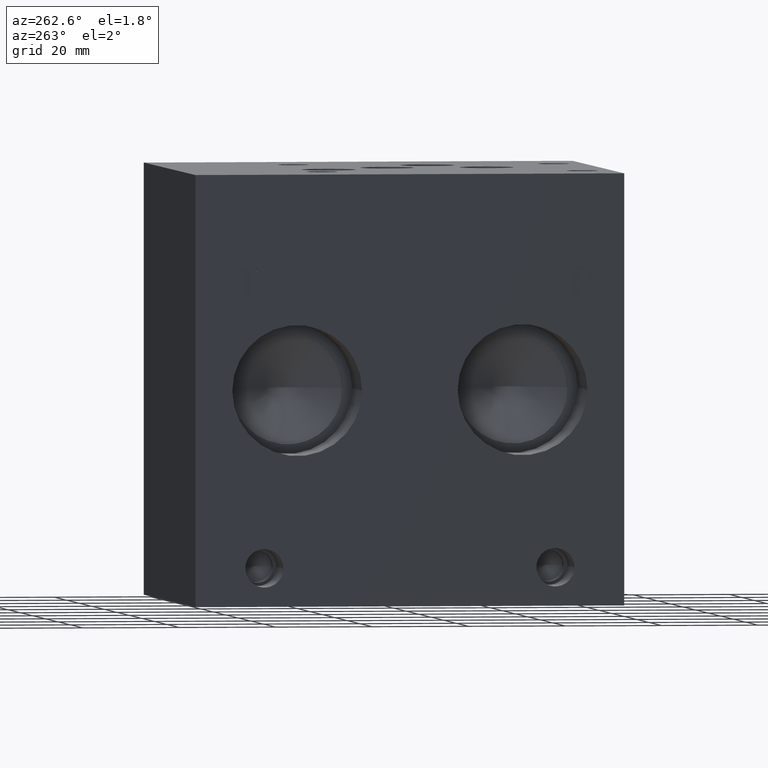
[diagram: clean part render]
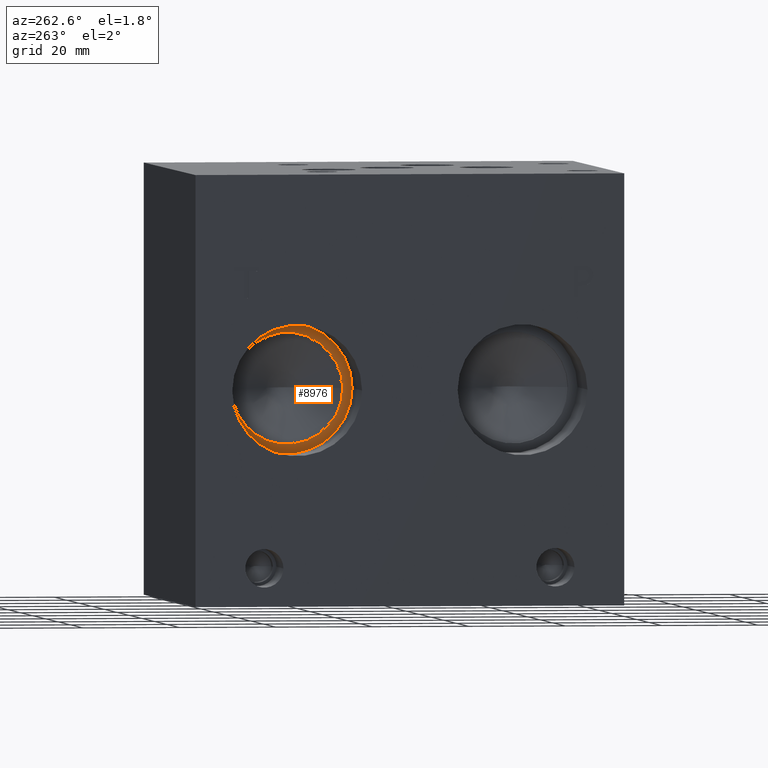
[diagram: same view with one face highlighted and labeled with its STEP entity id]
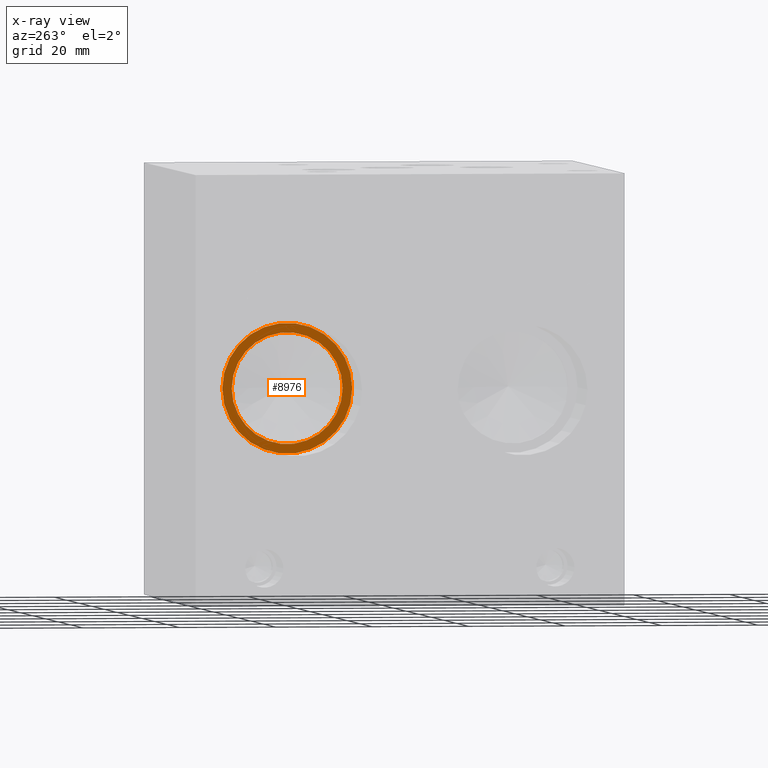
[diagram: x-ray of the same camera — body ghosted, the highlighted face saturated]
A machine part, auxiliary view. The second image highlights one B-rep face of the part: STEP entity #8976.
The next image is the same camera in x-ray: the body ghosted, the highlighted face saturated — about 0% of this face is hidden behind the body in this view.
In plain terms, the highlighted planar face has unit normal (-1, 0, 0).
Its self-contained STEP definition (entity closure, byte-faithful):
#86=CIRCLE('',#9355,13.462);
#87=CIRCLE('',#9356,13.462);
#88=CIRCLE('',#9357,11.5062);
#226=FACE_BOUND('',#1442,.T.);
#520=PLANE('',#9354);
#932=FACE_OUTER_BOUND('',#1441,.T.);
#1441=EDGE_LOOP('',(#7750,#7751));
#1442=EDGE_LOOP('',(#7752));
#4273=VERTEX_POINT('',#15082);
#4274=VERTEX_POINT('',#15083);
#4275=VERTEX_POINT('',#15086);
#5474=EDGE_CURVE('',#4273,#4274,#86,.T.);
#5475=EDGE_CURVE('',#4274,#4273,#87,.T.);
#5476=EDGE_CURVE('',#4275,#4275,#88,.T.);
#7750=ORIENTED_EDGE('',*,*,#5474,.T.);
#7751=ORIENTED_EDGE('',*,*,#5475,.T.);
#7752=ORIENTED_EDGE('',*,*,#5476,.F.);
#8976=ADVANCED_FACE('',(#932,#226),#520,.T.);
#9354=AXIS2_PLACEMENT_3D('',#15081,#10939,#10940);
#9355=AXIS2_PLACEMENT_3D('',#15084,#10941,#10942);
#9356=AXIS2_PLACEMENT_3D('',#15085,#10943,#10944);
#9357=AXIS2_PLACEMENT_3D('',#15087,#10945,#10946);
#10939=DIRECTION('center_axis',(-1.,0.,0.));
#10940=DIRECTION('ref_axis',(0.,1.,0.));
#10941=DIRECTION('center_axis',(-1.,0.,0.));
#10942=DIRECTION('ref_axis',(0.,1.,0.));
#10943=DIRECTION('center_axis',(-1.,0.,0.));
#10944=DIRECTION('ref_axis',(0.,1.,0.));
#10945=DIRECTION('center_axis',(-1.,0.,0.));
#10946=DIRECTION('ref_axis',(0.,1.,0.));
#15081=CARTESIAN_POINT('Origin',(15.8496,67.818,44.45));
#15082=CARTESIAN_POINT('',(15.8496,81.28,44.45));
#15083=CARTESIAN_POINT('',(15.8496,54.356,44.45));
#15084=CARTESIAN_POINT('Origin',(15.8496,67.818,44.45));
#15085=CARTESIAN_POINT('Origin',(15.8496,67.818,44.45));
#15086=CARTESIAN_POINT('',(15.8496,56.3118,44.45));
#15087=CARTESIAN_POINT('Origin',(15.8496,67.818,44.45));